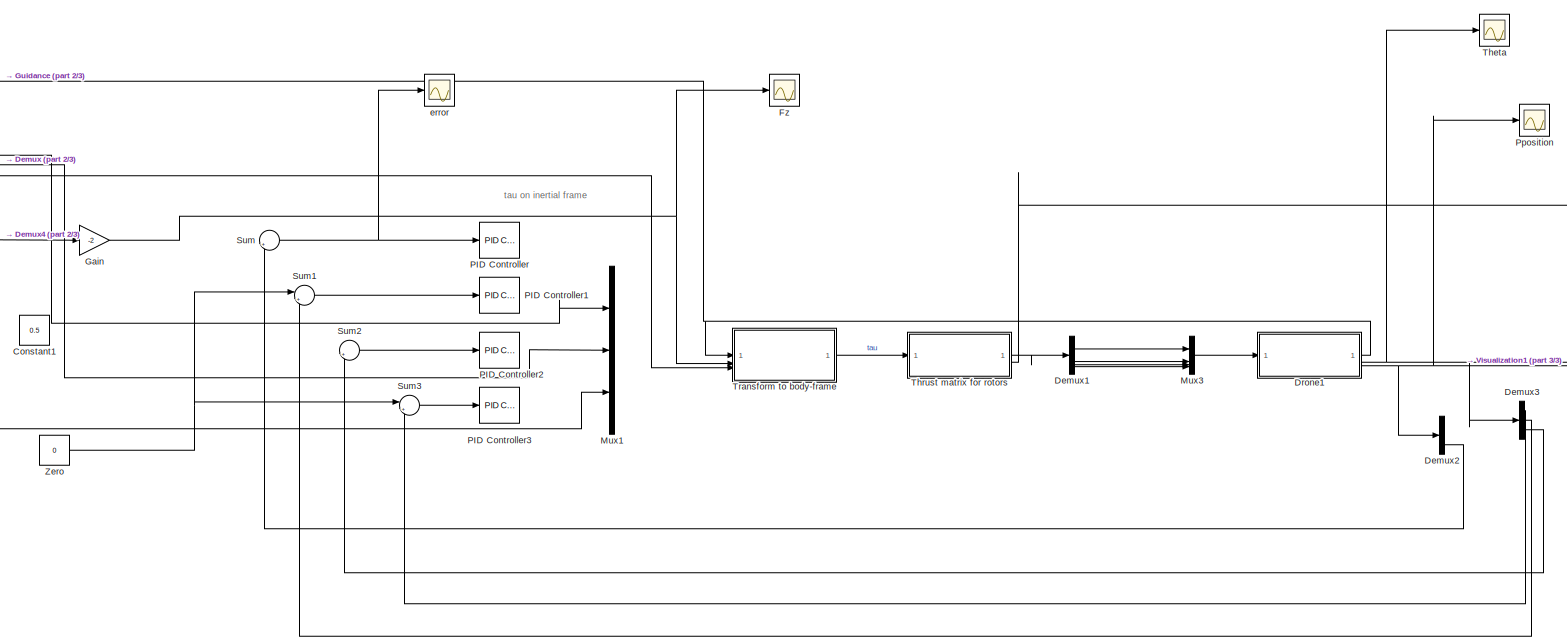
[diagram: root canvas - part 1/3, most of the canvas]
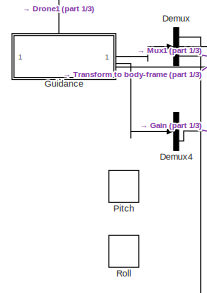
[diagram: root canvas - part 2/3, middle left region]
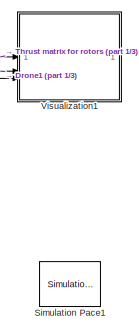
[diagram: root canvas - part 3/3, middle right region]
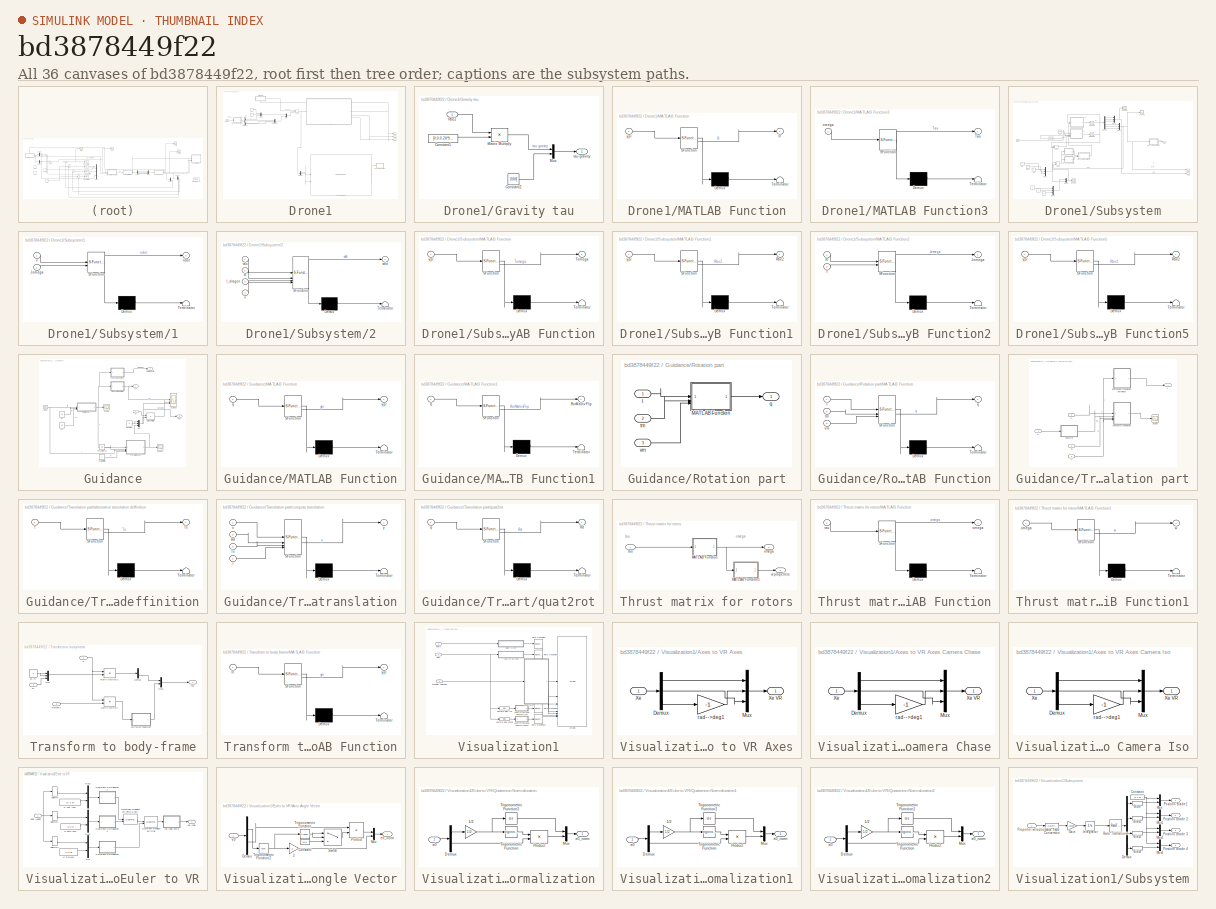
[diagram: thumbnail index - all 36 canvases of the model, root first then tree order]
MODEL slx_bd3878449f22
KIND model
CONFIG AbsTol = auto
CONFIG EnableMultiTasking = on
CONFIG FixedStep = 0.00000001
CONFIG MaxStep = auto
CONFIG MinStep = auto
CONFIG RelTol = 1e-3
CONFIG SampleTimeConstraint = Unconstrained
CONFIG SolverName = VariableStepAuto
CONFIG StartTime = 0
CONFIG StopTime = 1
BLOCK [Constant] Constant1
  Value = 0.5
BLOCK [Demux] Demux
  Outputs = 3
BLOCK [Demux] Demux1
BLOCK [Demux] Demux2
  Outputs = 3
BLOCK [Demux] Demux3
  Outputs = 3
BLOCK [Demux] Demux4
  Outputs = 3
BLOCK [SubSystem] Drone1
BLOCK [Reference] Drone1/6DOF (Quaternion)  REF=shared6dof/6DOF (Euler Angles)
  Commented = on
  SourceBlock = shared6dof/6DOF (Euler Angles)
  SourceType = 6DOF EoM (Body Axis)
BLOCK [Sum] Drone1/Add2
  IconShape = rectangular
BLOCK [Demux] Drone1/Demux
  Outputs = 2
BLOCK [Demux] Drone1/Demux1
BLOCK [Mux] Drone1/Forces
  DisplayOption = bar
  Inputs = 3
BLOCK [Constant] Drone1/Fx
  Value = 0
BLOCK [Constant] Drone1/Fy
  Value = 0
BLOCK [SubSystem] Drone1/Gravity tau
  PortSchema = {"entries":[{"content":{"sides":[{"content":{"connectorIds":[]},"type":"ConnectorPlacement.EquallySpacedRectSide","uuid":"34476b71-9b24-4b80-93b9-db525faab568"},{"content":{"connectorIds":["Out1"],"side":"RIGHT"},"type":"ConnectorPlacement.EquallySpacedRectSide","uuid":"f9e648e7-9cce-40ff-8639-1a2f2272512c"},{"content":{"connectorIds":["In1"],"side":"TOP"},"type":"ConnectorPlacement.EquallySpacedR...<+240ch>
BLOCK [Constant] Drone1/Gravity tau/Constant1
  Value = [0;0;0.28*9.81]
BLOCK [Constant] Drone1/Gravity tau/Constant2
  Value = [0;0;0]
BLOCK [Product] Drone1/Gravity tau/Matrix Multiply
  Multiplication = Matrix(*)
BLOCK [Mux] Drone1/Gravity tau/Mux
  DisplayOption = bar
  Inputs = 2
BLOCK [Inport] Drone1/Gravity tau/Rbe2
BLOCK [Outport] Drone1/Gravity tau/tau gravity
BLOCK [SubSystem] Drone1/MATLAB Function
  Commented = on
  ErrorFcn = Stateflow.Translate.translate
  LibrarySourceBlock = simulink/User-Defined\nFunctions/MATLAB Function
  PermitHierarchicalResolution = ExplicitOnly
  SFBlockType = MATLAB Function
  TreatAsAtomicUnit = on
BLOCK [Demux] Drone1/MATLAB Function/ Demux 
  Outputs = 1
BLOCK [S-Function] Drone1/MATLAB Function/ SFunction 
  EnableBusSupport = on
  FunctionName = sf_sfun
  PortCounts = [1 2]
  SFcnIsStateOwnerBlock = off
  SFunctionDeploymentMode = off
  Tag = Stateflow S-Function 9
BLOCK [Terminator] Drone1/MATLAB Function/ Terminator 
BLOCK [Outport] Drone1/MATLAB Function/R
BLOCK [Inport] Drone1/MATLAB Function/ypr
BLOCK [SubSystem] Drone1/MATLAB Function3
  ErrorFcn = Stateflow.Translate.translate
  LibrarySourceBlock = simulink/User-Defined\nFunctions/MATLAB Function
  PermitHierarchicalResolution = ExplicitOnly
  SFBlockType = MATLAB Function
  TreatAsAtomicUnit = on
BLOCK [Demux] Drone1/MATLAB Function3/ Demux 
  Outputs = 1
BLOCK [S-Function] Drone1/MATLAB Function3/ SFunction 
  EnableBusSupport = on
  FunctionName = sf_sfun
  PortCounts = [1 2]
  SFcnIsStateOwnerBlock = off
  SFunctionDeploymentMode = off
  Tag = Stateflow S-Function 14
BLOCK [Terminator] Drone1/MATLAB Function3/ Terminator 
BLOCK [Outport] Drone1/MATLAB Function3/Tau
BLOCK [Inport] Drone1/MATLAB Function3/omega
BLOCK [Outport] Drone1/NED
  Port = 3
BLOCK [Outport] Drone1/Rbe2
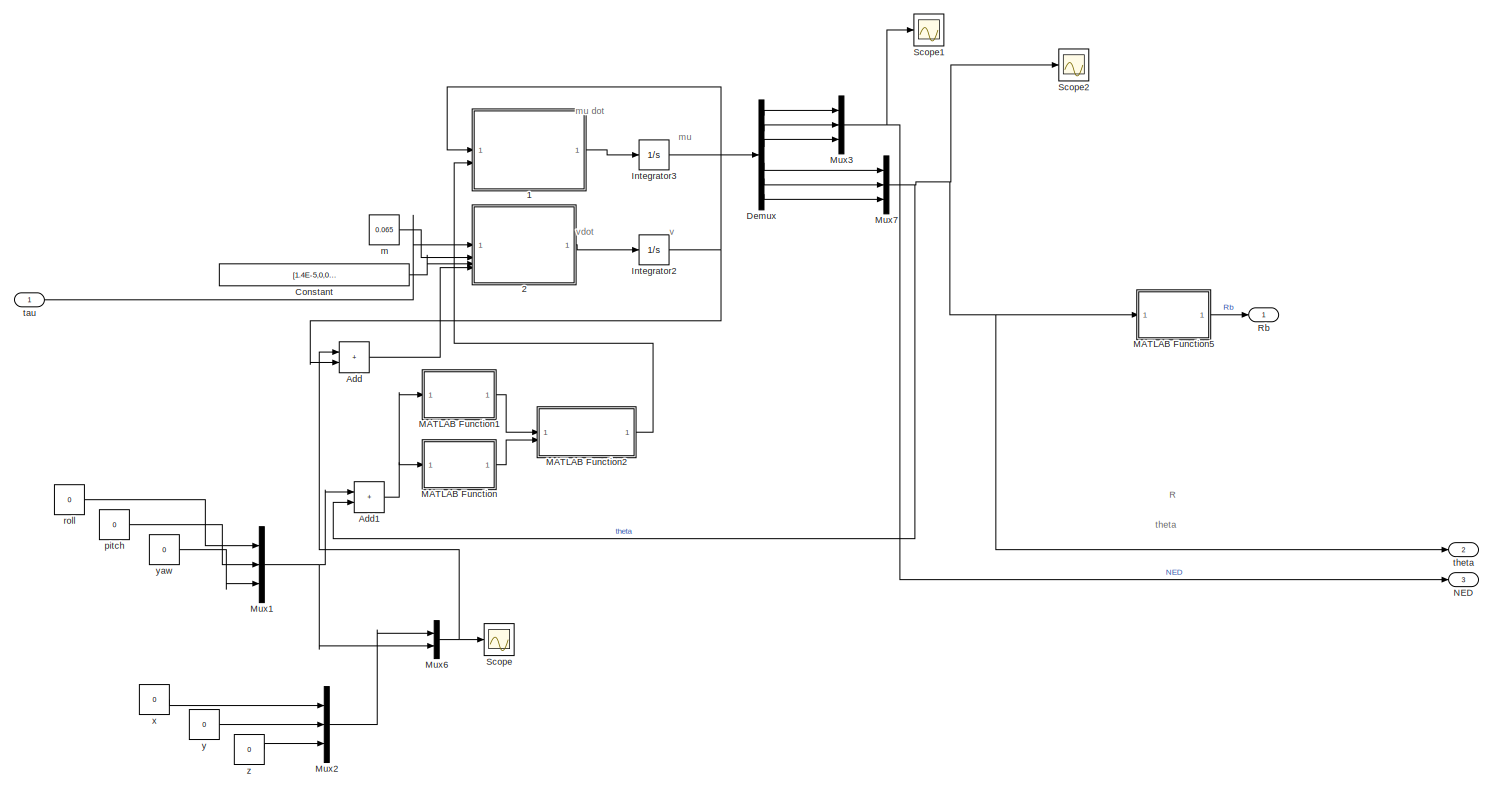
[diagram: Drone1/Subsystem - part 1/1, most of the canvas]
BLOCK [SubSystem] Drone1/Subsystem
BLOCK [SubSystem] Drone1/Subsystem/1
  ErrorFcn = Stateflow.Translate.translate
  LibrarySourceBlock = simulink/User-Defined\nFunctions/MATLAB Function
  PermitHierarchicalResolution = ExplicitOnly
  SFBlockType = MATLAB Function
  TreatAsAtomicUnit = on
BLOCK [Demux] Drone1/Subsystem/1/ Demux 
  Outputs = 1
BLOCK [S-Function] Drone1/Subsystem/1/ SFunction 
  EnableBusSupport = on
  FunctionName = sf_sfun
  PortCounts = [2 2]
  SFcnIsStateOwnerBlock = off
  SFunctionDeploymentMode = off
  Tag = Stateflow S-Function 2
BLOCK [Terminator] Drone1/Subsystem/1/ Terminator 
BLOCK [Inport] Drone1/Subsystem/1/Jomega
  Port = 2
BLOCK [Outport] Drone1/Subsystem/1/ndot
BLOCK [Inport] Drone1/Subsystem/1/v
BLOCK [SubSystem] Drone1/Subsystem/2
  ErrorFcn = Stateflow.Translate.translate
  PermitHierarchicalResolution = ExplicitOnly
  SFBlockType = MATLAB Function
  TreatAsAtomicUnit = on
BLOCK [Demux] Drone1/Subsystem/2/ Demux 
  Outputs = 1
BLOCK [S-Function] Drone1/Subsystem/2/ SFunction 
  EnableBusSupport = on
  FunctionName = sf_sfun
  PortCounts = [4 2]
  SFcnIsStateOwnerBlock = off
  SFunctionDeploymentMode = off
  Tag = Stateflow S-Function 7
BLOCK [Terminator] Drone1/Subsystem/2/ Terminator 
BLOCK [Inport] Drone1/Subsystem/2/I_dragon
  Port = 3
BLOCK [Inport] Drone1/Subsystem/2/m
  Port = 2
BLOCK [Inport] Drone1/Subsystem/2/tau
BLOCK [Inport] Drone1/Subsystem/2/v
  Port = 4
BLOCK [Outport] Drone1/Subsystem/2/vdot
  VectorParamsAs1DForOutWhenUnconnected = off
BLOCK [Sum] Drone1/Subsystem/Add
  IconShape = rectangular
BLOCK [Sum] Drone1/Subsystem/Add1
  IconShape = rectangular
BLOCK [Constant] Drone1/Subsystem/Constant
  Value = [1.4E-5,0,0;0,1.4E-5,0;0,0,2.17E-5]
BLOCK [Demux] Drone1/Subsystem/Demux
  Outputs = 6
BLOCK [Integrator] Drone1/Subsystem/Integrator2
BLOCK [Integrator] Drone1/Subsystem/Integrator3
BLOCK [SubSystem] Drone1/Subsystem/MATLAB Function
  ErrorFcn = Stateflow.Translate.translate
  LibrarySourceBlock = simulink/User-Defined\nFunctions/MATLAB Function
  PermitHierarchicalResolution = ExplicitOnly
  SFBlockType = MATLAB Function
  TreatAsAtomicUnit = on
BLOCK [Demux] Drone1/Subsystem/MATLAB Function/ Demux 
  Outputs = 1
BLOCK [S-Function] Drone1/Subsystem/MATLAB Function/ SFunction 
  EnableBusSupport = on
  FunctionName = sf_sfun
  PortCounts = [1 2]
  SFcnIsStateOwnerBlock = off
  SFunctionDeploymentMode = off
  Tag = Stateflow S-Function 11
BLOCK [Terminator] Drone1/Subsystem/MATLAB Function/ Terminator 
BLOCK [Outport] Drone1/Subsystem/MATLAB Function/Tomega
BLOCK [Inport] Drone1/Subsystem/MATLAB Function/ypr
BLOCK [SubSystem] Drone1/Subsystem/MATLAB Function1
  ErrorFcn = Stateflow.Translate.translate
  LibrarySourceBlock = simulink/User-Defined\nFunctions/MATLAB Function
  PermitHierarchicalResolution = ExplicitOnly
  SFBlockType = MATLAB Function
  TreatAsAtomicUnit = on
BLOCK [Demux] Drone1/Subsystem/MATLAB Function1/ Demux 
  Outputs = 1
BLOCK [S-Function] Drone1/Subsystem/MATLAB Function1/ SFunction 
  EnableBusSupport = on
  FunctionName = sf_sfun
  PortCounts = [1 2]
  SFcnIsStateOwnerBlock = off
  SFunctionDeploymentMode = off
  Tag = Stateflow S-Function 12
BLOCK [Terminator] Drone1/Subsystem/MATLAB Function1/ Terminator 
BLOCK [Outport] Drone1/Subsystem/MATLAB Function1/Rbe2
BLOCK [Inport] Drone1/Subsystem/MATLAB Function1/ypr
BLOCK [SubSystem] Drone1/Subsystem/MATLAB Function2
  ErrorFcn = Stateflow.Translate.translate
  LibrarySourceBlock = simulink/User-Defined\nFunctions/MATLAB Function
  PermitHierarchicalResolution = ExplicitOnly
  SFBlockType = MATLAB Function
  TreatAsAtomicUnit = on
BLOCK [Demux] Drone1/Subsystem/MATLAB Function2/ Demux 
  Outputs = 1
BLOCK [S-Function] Drone1/Subsystem/MATLAB Function2/ SFunction 
  EnableBusSupport = on
  FunctionName = sf_sfun
  PortCounts = [2 2]
  SFcnIsStateOwnerBlock = off
  SFunctionDeploymentMode = off
  Tag = Stateflow S-Function 13
BLOCK [Terminator] Drone1/Subsystem/MATLAB Function2/ Terminator 
BLOCK [Outport] Drone1/Subsystem/MATLAB Function2/Jomega
BLOCK [Inport] Drone1/Subsystem/MATLAB Function2/R
BLOCK [Inport] Drone1/Subsystem/MATLAB Function2/T
  Port = 2
BLOCK [SubSystem] Drone1/Subsystem/MATLAB Function5
  ErrorFcn = Stateflow.Translate.translate
  LibrarySourceBlock = simulink/User-Defined\nFunctions/MATLAB Function
  PermitHierarchicalResolution = ExplicitOnly
  SFBlockType = MATLAB Function
  TreatAsAtomicUnit = on
BLOCK [Demux] Drone1/Subsystem/MATLAB Function5/ Demux 
  Outputs = 1
BLOCK [S-Function] Drone1/Subsystem/MATLAB Function5/ SFunction 
  EnableBusSupport = on
  FunctionName = sf_sfun
  PortCounts = [1 2]
  SFcnIsStateOwnerBlock = off
  SFunctionDeploymentMode = off
  Tag = Stateflow S-Function 15
BLOCK [Terminator] Drone1/Subsystem/MATLAB Function5/ Terminator 
BLOCK [Outport] Drone1/Subsystem/MATLAB Function5/Rbe2
BLOCK [Inport] Drone1/Subsystem/MATLAB Function5/ypr
BLOCK [Mux] Drone1/Subsystem/Mux1
  DisplayOption = bar
  Inputs = 3
BLOCK [Mux] Drone1/Subsystem/Mux2
  DisplayOption = bar
  Inputs = 3
BLOCK [Mux] Drone1/Subsystem/Mux3
  DisplayOption = bar
  Inputs = 3
BLOCK [Mux] Drone1/Subsystem/Mux6
  DisplayOption = bar
  Inputs = 2
BLOCK [Mux] Drone1/Subsystem/Mux7
  DisplayOption = bar
  Inputs = 3
BLOCK [Outport] Drone1/Subsystem/NED
  Port = 3
BLOCK [Outport] Drone1/Subsystem/Rb
BLOCK [Scope] Drone1/Subsystem/Scope
  Floating = off
  NumInputPorts = 1
  ScopeSpecificationString = Simulink.scopes.TimeScopeBlockCfg('CurrentConfiguration', extmgr.ConfigurationSet(extmgr.Configuration('Core','General UI',true),extmgr.Configuration('Core','Source UI',true),extmgr.Configuration('Sources','WiredSimulink',true,'DataLoggingVariableName','ScopeData1'),extmgr.Configuration('Visuals','Time Domain',true),extmgr.Configuration('Tools','Plot Navigation',true),extmgr.Configuration('Tools',...<+40ch>
BLOCK [Scope] Drone1/Subsystem/Scope1
  Floating = off
  NumInputPorts = 1
  ScopeSpecificationString = Simulink.scopes.TimeScopeBlockCfg('CurrentConfiguration', extmgr.ConfigurationSet(extmgr.Configuration('Core','General UI',true),extmgr.Configuration('Core','Source UI',true),extmgr.Configuration('Sources','WiredSimulink',true,'DataLoggingVariableName','ScopeData2'),extmgr.Configuration('Visuals','Time Domain',true,'SerializedDisplays',{struct('MinYLimReal','-0.50783','MaxYLimReal','0.05643','YLab...<+1420ch>
BLOCK [Scope] Drone1/Subsystem/Scope2
  Floating = off
  NumInputPorts = 1
  ScopeSpecificationString = Simulink.scopes.TimeScopeBlockCfg('CurrentConfiguration', extmgr.ConfigurationSet(extmgr.Configuration('Core','General UI',true),extmgr.Configuration('Core','Source UI',true),extmgr.Configuration('Sources','WiredSimulink',true),extmgr.Configuration('Visuals','Time Domain',true,'SerializedDisplays',{struct('MinYLimReal','-1.00000','MaxYLimReal','1.00000','YLabelReal','','MinYLimMag','0.00000','MaxY...<+1402ch>
BLOCK [Constant] Drone1/Subsystem/m
  Value = 0.065
BLOCK [Constant] Drone1/Subsystem/pitch
  Value = 0
BLOCK [Constant] Drone1/Subsystem/roll
  Value = 0
BLOCK [Inport] Drone1/Subsystem/tau
BLOCK [Outport] Drone1/Subsystem/theta
  Port = 2
BLOCK [Constant] Drone1/Subsystem/x
  Value = 0
BLOCK [Constant] Drone1/Subsystem/y
  Value = 0
BLOCK [Constant] Drone1/Subsystem/yaw
  Value = 0
BLOCK [Constant] Drone1/Subsystem/z
  Value = 0
BLOCK [Outport] Drone1/Theta
  Port = 2
BLOCK [Mux] Drone1/moments
  DisplayOption = bar
  Inputs = 3
BLOCK [Inport] Drone1/omega
BLOCK [Mux] Drone1/tau
  DisplayOption = bar
  Inputs = 2
BLOCK [Scope] Fz
  Floating = off
  NumInputPorts = 1
  ScopeSpecificationString = Simulink.scopes.TimeScopeBlockCfg('CurrentConfiguration', extmgr.ConfigurationSet(extmgr.Configuration('Core','General UI',true),extmgr.Configuration('Core','Source UI',true),extmgr.Configuration('Sources','WiredSimulink',true,'DataLoggingVariableName','ScopeData3'),extmgr.Configuration('Visuals','Time Domain',true,'SerializedDisplays',{struct('MinYLimReal','-5.31799','MaxYLimReal','-2.13805','YLa...<+1456ch>
BLOCK [Gain] Gain
  Gain = -2
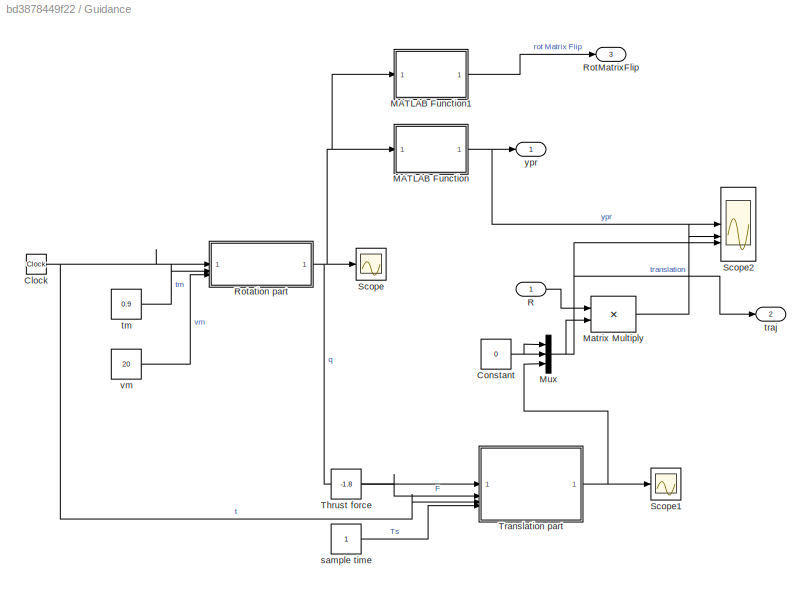
BLOCK [SubSystem] Guidance
  PortSchema = {"entries":[{"content":{"sides":[{"content":{"connectorIds":[]},"type":"ConnectorPlacement.EquallySpacedRectSide","uuid":"71e90d44-93d9-4948-9515-e584c9c45b4d"},{"content":{"connectorIds":["Out1","Out2","Out3"],"side":"RIGHT"},"type":"ConnectorPlacement.EquallySpacedRectSide","uuid":"b9ea6ff8-0025-4fb1-8de2-d026a39c77e0"},{"content":{"connectorIds":["In1"],"side":"TOP"},"type":"ConnectorPlacement....<+254ch>
BLOCK [Clock] Guidance/Clock
BLOCK [Constant] Guidance/Constant
  Value = 0
BLOCK [SubSystem] Guidance/MATLAB Function
  ErrorFcn = Stateflow.Translate.translate
  LibrarySourceBlock = simulink/User-Defined\nFunctions/MATLAB Function
  PermitHierarchicalResolution = ExplicitOnly
  SFBlockType = MATLAB Function
  TreatAsAtomicUnit = on
BLOCK [Demux] Guidance/MATLAB Function/ Demux 
  Outputs = 1
BLOCK [S-Function] Guidance/MATLAB Function/ SFunction 
  EnableBusSupport = on
  FunctionName = sf_sfun
  PortCounts = [1 2]
  SFcnIsStateOwnerBlock = off
  SFunctionDeploymentMode = off
  Tag = Stateflow S-Function 8
BLOCK [Terminator] Guidance/MATLAB Function/ Terminator 
BLOCK [Inport] Guidance/MATLAB Function/q
BLOCK [Outport] Guidance/MATLAB Function/ypr
BLOCK [SubSystem] Guidance/MATLAB Function1
  ErrorFcn = Stateflow.Translate.translate
  LibrarySourceBlock = simulink/User-Defined\nFunctions/MATLAB Function
  PermitHierarchicalResolution = ExplicitOnly
  SFBlockType = MATLAB Function
  TreatAsAtomicUnit = on
BLOCK [Demux] Guidance/MATLAB Function1/ Demux 
  Outputs = 1
BLOCK [S-Function] Guidance/MATLAB Function1/ SFunction 
  EnableBusSupport = on
  FunctionName = sf_sfun
  PortCounts = [1 2]
  SFcnIsStateOwnerBlock = off
  SFunctionDeploymentMode = off
  Tag = Stateflow S-Function 10
BLOCK [Terminator] Guidance/MATLAB Function1/ Terminator 
BLOCK [Outport] Guidance/MATLAB Function1/RotMatrixFlip
BLOCK [Inport] Guidance/MATLAB Function1/q
BLOCK [Product] Guidance/Matrix Multiply
  Multiplication = Matrix(*)
BLOCK [Mux] Guidance/Mux
  DisplayOption = bar
  Inputs = 3
BLOCK [Inport] Guidance/R
BLOCK [Outport] Guidance/RotMatrixFlip
  Port = 3
BLOCK [SubSystem] Guidance/Rotation part
BLOCK [SubSystem] Guidance/Rotation part/MATLAB Function
  ErrorFcn = Stateflow.Translate.translate
  LibrarySourceBlock = simulink/User-Defined\nFunctions/MATLAB Function
  PermitHierarchicalResolution = ExplicitOnly
  SFBlockType = MATLAB Function
  TreatAsAtomicUnit = on
BLOCK [Demux] Guidance/Rotation part/MATLAB Function/ Demux 
  Outputs = 1
BLOCK [S-Function] Guidance/Rotation part/MATLAB Function/ SFunction 
  EnableBusSupport = on
  FunctionName = sf_sfun
  PortCounts = [3 2]
  SFcnIsStateOwnerBlock = off
  SFunctionDeploymentMode = off
  Tag = Stateflow S-Function 3
BLOCK [Terminator] Guidance/Rotation part/MATLAB Function/ Terminator 
BLOCK [Outport] Guidance/Rotation part/MATLAB Function/q
BLOCK [Inport] Guidance/Rotation part/MATLAB Function/t
BLOCK [Inport] Guidance/Rotation part/MATLAB Function/tm
  Port = 2
BLOCK [Inport] Guidance/Rotation part/MATLAB Function/vm
  Port = 3
BLOCK [Outport] Guidance/Rotation part/q
BLOCK [Inport] Guidance/Rotation part/t
BLOCK [Inport] Guidance/Rotation part/tm
  Port = 2
BLOCK [Inport] Guidance/Rotation part/vm
  Port = 3
BLOCK [Scope] Guidance/Scope
  Floating = off
  NumInputPorts = 1
  ScopeSpecificationString = Simulink.scopes.TimeScopeBlockCfg('CurrentConfiguration', extmgr.ConfigurationSet(extmgr.Configuration('Core','General UI',true),extmgr.Configuration('Core','Source UI',true),extmgr.Configuration('Sources','WiredSimulink',true,'DataLoggingVariableName','ScopeData1'),extmgr.Configuration('Visuals','Time Domain',true,'SerializedDisplays',{struct('MinYLimReal','-1.24972','MaxYLimReal','1.24997','YLab...<+1461ch>
BLOCK [Scope] Guidance/Scope1
  Floating = off
  NumInputPorts = 1
  ScopeSpecificationString = Simulink.scopes.TimeScopeBlockCfg('CurrentConfiguration', extmgr.ConfigurationSet(extmgr.Configuration('Core','General UI',true),extmgr.Configuration('Core','Source UI',true),extmgr.Configuration('Sources','WiredSimulink',true,'DataLoggingVariableName','ScopeData1'),extmgr.Configuration('Visuals','Time Domain',true,'SerializedDisplays',{struct('MinYLimReal','-2.80858','MaxYLimReal','25.39671','YLa...<+1434ch>
BLOCK [Scope] Guidance/Scope2
  Floating = off
  NumInputPorts = 3
  ScopeSpecificationString = Simulink.scopes.TimeScopeBlockCfg('CurrentConfiguration', extmgr.ConfigurationSet(extmgr.Configuration('Core','General UI',true),extmgr.Configuration('Core','Source UI',true),extmgr.Configuration('Sources','WiredSimulink',true,'DataLoggingVariableName','ScopeData2'),extmgr.Configuration('Visuals','Time Domain',true,'SerializedDisplays',{struct('MinYLimReal','-27.39735','MaxYLimReal','28.1288','YLa...<+1759ch>
BLOCK [Constant] Guidance/Thrust force
  Value = -1.8
BLOCK [SubSystem] Guidance/Translation part
BLOCK [Scope] Guidance/Translation part/Scope
  Floating = off
  NumInputPorts = 1
  ScopeSpecificationString = Simulink.scopes.TimeScopeBlockCfg('CurrentConfiguration', extmgr.ConfigurationSet(extmgr.Configuration('Core','General UI',true),extmgr.Configuration('Core','Source UI',true),extmgr.Configuration('Sources','WiredSimulink',true,'DataLoggingVariableName','ScopeData2'),extmgr.Configuration('Visuals','Time Domain',true),extmgr.Configuration('Tools','Plot Navigation',true),extmgr.Configuration('Tools',...<+40ch>
BLOCK [Inport] Guidance/Translation part/Ts
  Port = 4
BLOCK [SubSystem] Guidance/Translation part/alternative translation deffinition
  ErrorFcn = Stateflow.Translate.translate
  LibrarySourceBlock = simulink/User-Defined\nFunctions/MATLAB Function
  PermitHierarchicalResolution = ExplicitOnly
  SFBlockType = MATLAB Function
  TreatAsAtomicUnit = on
BLOCK [Demux] Guidance/Translation part/alternative translation deffinition/ Demux 
  Outputs = 1
BLOCK [S-Function] Guidance/Translation part/alternative translation deffinition/ SFunction 
  EnableBusSupport = on
  FunctionName = sf_sfun
  PortCounts = [1 2]
  SFcnIsStateOwnerBlock = off
  SFunctionDeploymentMode = off
  Tag = Stateflow S-Function 6
BLOCK [Terminator] Guidance/Translation part/alternative translation deffinition/ Terminator 
BLOCK [Outport] Guidance/Translation part/alternative translation deffinition/Ts
BLOCK [Inport] Guidance/Translation part/alternative translation deffinition/t
BLOCK [SubSystem] Guidance/Translation part/compute translation
  Commented = on
  ErrorFcn = Stateflow.Translate.translate
  LibrarySourceBlock = simulink/User-Defined\nFunctions/MATLAB Function
  PermitHierarchicalResolution = ExplicitOnly
  SFBlockType = MATLAB Function
  TreatAsAtomicUnit = on
BLOCK [Demux] Guidance/Translation part/compute translation/ Demux 
  Outputs = 1
BLOCK [S-Function] Guidance/Translation part/compute translation/ SFunction 
  EnableBusSupport = on
  FunctionName = sf_sfun
  PortCounts = [4 2]
  SFcnIsStateOwnerBlock = off
  SFunctionDeploymentMode = off
  Tag = Stateflow S-Function 5
BLOCK [Terminator] Guidance/Translation part/compute translation/ Terminator 
BLOCK [Inport] Guidance/Translation part/compute translation/Rd
  Port = 2
BLOCK [Inport] Guidance/Translation part/compute translation/Ts
  Port = 3
BLOCK [Inport] Guidance/Translation part/compute translation/t
  Port = 4
BLOCK [Inport] Guidance/Translation part/compute translation/u
BLOCK [Outport] Guidance/Translation part/compute translation/y
BLOCK [Inport] Guidance/Translation part/q
BLOCK [SubSystem] Guidance/Translation part/quat2rot
  ErrorFcn = Stateflow.Translate.translate
  LibrarySourceBlock = simulink/User-Defined\nFunctions/MATLAB Function
  PermitHierarchicalResolution = ExplicitOnly
  SFBlockType = MATLAB Function
  TreatAsAtomicUnit = on
BLOCK [Demux] Guidance/Translation part/quat2rot/ Demux 
  Outputs = 1
BLOCK [S-Function] Guidance/Translation part/quat2rot/ SFunction 
  EnableBusSupport = on
  FunctionName = sf_sfun
  PortCounts = [1 2]
  SFcnIsStateOwnerBlock = off
  SFunctionDeploymentMode = off
  Tag = Stateflow S-Function 4
BLOCK [Terminator] Guidance/Translation part/quat2rot/ Terminator 
BLOCK [Outport] Guidance/Translation part/quat2rot/Rd
BLOCK [Inport] Guidance/Translation part/quat2rot/q
BLOCK [Inport] Guidance/Translation part/t
  Port = 3
BLOCK [Inport] Guidance/Translation part/u
  Port = 2
BLOCK [Outport] Guidance/Translation part/y
BLOCK [Constant] Guidance/sample time
BLOCK [Constant] Guidance/tm
  Value = 0.9
BLOCK [Outport] Guidance/traj
  Port = 2
BLOCK [Constant] Guidance/vm
  Value = 20
BLOCK [Outport] Guidance/ypr
BLOCK [Mux] Mux1
  DisplayOption = bar
  Inputs = 3
BLOCK [Mux] Mux3
  DisplayOption = bar
BLOCK [Reference] PID Controller  REF=slpidlib/PID Controller
  LibrarySourceBlock = simulink/Continuous/PID Controller
  SourceBlock = slpidlib/PID Controller
  SourceType = PID 1dof
BLOCK [Reference] PID Controller1  REF=slpidlib/PID Controller
  LibrarySourceBlock = simulink/Continuous/PID Controller
  SourceBlock = slpidlib/PID Controller
  SourceType = PID 1dof
BLOCK [Reference] PID Controller2  REF=slpidlib/PID Controller
  LibrarySourceBlock = simulink/Continuous/PID Controller
  SourceBlock = slpidlib/PID Controller
  SourceType = PID 1dof
BLOCK [Reference] PID Controller3  REF=slpidlib/PID Controller
  LibrarySourceBlock = simulink/Continuous/PID Controller
  SourceBlock = slpidlib/PID Controller
  SourceType = PID 1dof
BLOCK [DiscretePulseGenerator] Pitch
  Amplitude = -0.15
  Commented = on
  Period = 1
  PhaseDelay = 0.6
  PulseType = Time based
  PulseWidth = 5
BLOCK [Scope] Pposition
  Floating = off
  NumInputPorts = 1
  ScopeSpecificationString = Simulink.scopes.TimeScopeBlockCfg('CurrentConfiguration', extmgr.ConfigurationSet(extmgr.Configuration('Core','General UI',true),extmgr.Configuration('Core','Source UI',true),extmgr.Configuration('Sources','WiredSimulink',true,'DataLoggingVariableName','ScopeData2'),extmgr.Configuration('Visuals','Time Domain',true,'SerializedDisplays',{struct('MinYLimReal','-1.51892','MaxYLimReal','0.16877','YLab...<+1477ch>
BLOCK [DiscretePulseGenerator] Roll
  Amplitude = 0.1
  Commented = on
  Period = 10
  PhaseDelay = 4
  PulseType = Time based
  PulseWidth = 5
BLOCK [Reference] Simulation Pace1  REF=aerolibanimutils/Simulation Pace
  AttributesFormatString = %<SimulationPace> sec/sec
  SourceBlock = aerolibanimutils/Simulation Pace
  SourceType = Simulation Pace
BLOCK [Sum] Sum
  Inputs = |+-
BLOCK [Sum] Sum1
  Inputs = |+-
BLOCK [Sum] Sum2
  Inputs = |+-
BLOCK [Sum] Sum3
  Inputs = |+-
BLOCK [Scope] Theta
  Floating = off
  NumInputPorts = 1
  ScopeSpecificationString = Simulink.scopes.TimeScopeBlockCfg('CurrentConfiguration', extmgr.ConfigurationSet(extmgr.Configuration('Core','General UI',true),extmgr.Configuration('Core','Source UI',true),extmgr.Configuration('Sources','WiredSimulink',true,'DataLoggingVariableName','ScopeData1'),extmgr.Configuration('Visuals','Time Domain',true,'SerializedDisplays',{struct('MinYLimReal','-1.00000','MaxYLimReal','1.00000','YLab...<+1449ch>
BLOCK [SubSystem] Thrust matrix for rotors
BLOCK [SubSystem] Thrust matrix for rotors/MATLAB Function
  ErrorFcn = Stateflow.Translate.translate
  LibrarySourceBlock = simulink/User-Defined\nFunctions/MATLAB Function
  PermitHierarchicalResolution = ExplicitOnly
  SFBlockType = MATLAB Function
  TreatAsAtomicUnit = on
BLOCK [Demux] Thrust matrix for rotors/MATLAB Function/ Demux 
  Outputs = 1
BLOCK [S-Function] Thrust matrix for rotors/MATLAB Function/ SFunction 
  EnableBusSupport = on
  FunctionName = sf_sfun
  PortCounts = [1 2]
  SFcnIsStateOwnerBlock = off
  SFunctionDeploymentMode = off
  Tag = Stateflow S-Function 16
BLOCK [Terminator] Thrust matrix for rotors/MATLAB Function/ Terminator 
BLOCK [Outport] Thrust matrix for rotors/MATLAB Function/omega
BLOCK [Inport] Thrust matrix for rotors/MATLAB Function/tau
BLOCK [SubSystem] Thrust matrix for rotors/MATLAB Function1
  ErrorFcn = Stateflow.Translate.translate
  LibrarySourceBlock = simulink/User-Defined\nFunctions/MATLAB Function
  PermitHierarchicalResolution = ExplicitOnly
  SFBlockType = MATLAB Function
  TreatAsAtomicUnit = on
BLOCK [Demux] Thrust matrix for rotors/MATLAB Function1/ Demux 
  Outputs = 1
BLOCK [S-Function] Thrust matrix for rotors/MATLAB Function1/ SFunction 
  EnableBusSupport = on
  FunctionName = sf_sfun
  PortCounts = [1 2]
  SFcnIsStateOwnerBlock = off
  SFunctionDeploymentMode = off
  Tag = Stateflow S-Function 1
BLOCK [Terminator] Thrust matrix for rotors/MATLAB Function1/ Terminator 
BLOCK [Inport] Thrust matrix for rotors/MATLAB Function1/omega
BLOCK [Outport] Thrust matrix for rotors/MATLAB Function1/w
BLOCK [Outport] Thrust matrix for rotors/omega
BLOCK [Inport] Thrust matrix for rotors/tau
BLOCK [Outport] Thrust matrix for rotors/w propellers
  Port = 2
BLOCK [SubSystem] Transform to body-frame
BLOCK [Demux] Transform to body-frame/Demux
  Outputs = 3
BLOCK [Constant] Transform to body-frame/Fx, Fy
  Value = 0
BLOCK [Inport] Transform to body-frame/Fz
  Port = 2
BLOCK [SubSystem] Transform to body-frame/MATLAB Function
  ErrorFcn = Stateflow.Translate.translate
  LibrarySourceBlock = simulink/User-Defined\nFunctions/MATLAB Function
  PermitHierarchicalResolution = ExplicitOnly
  SFBlockType = MATLAB Function
  TreatAsAtomicUnit = on
BLOCK [Demux] Transform to body-frame/MATLAB Function/ Demux 
  Outputs = 1
BLOCK [S-Function] Transform to body-frame/MATLAB Function/ SFunction 
  EnableBusSupport = on
  FunctionName = sf_sfun
  PortCounts = [1 2]
  SFcnIsStateOwnerBlock = off
  SFunctionDeploymentMode = off
  Tag = Stateflow S-Function 17
BLOCK [Terminator] Transform to body-frame/MATLAB Function/ Terminator 
BLOCK [Inport] Transform to body-frame/MATLAB Function/R
BLOCK [Outport] Transform to body-frame/MATLAB Function/ypr
BLOCK [Product] Transform to body-frame/Matrix Multiply
  Multiplication = Matrix(*)
BLOCK [Product] Transform to body-frame/Matrix Multiply1
  Multiplication = Matrix(*)
BLOCK [Mux] Transform to body-frame/Mux
  DisplayOption = bar
  Inputs = 3
BLOCK [Mux] Transform to body-frame/Mux1
  DisplayOption = bar
  Inputs = 2
BLOCK [Inport] Transform to body-frame/R
BLOCK [Inport] Transform to body-frame/moments
  Port = 3
BLOCK [Outport] Transform to body-frame/tau
BLOCK [SubSystem] Visualization1
BLOCK [SubSystem] Visualization1/Axes to VR Axes
BLOCK [SubSystem] Visualization1/Axes to VR Axes Camera Chase
BLOCK [Demux] Visualization1/Axes to VR Axes Camera Chase/Demux
  DisplayOption = none
  Outputs = 3
BLOCK [Mux] Visualization1/Axes to VR Axes Camera Chase/Mux
  DisplayOption = bar
  Inputs = 3
BLOCK [Inport] Visualization1/Axes to VR Axes Camera Chase/Xe
BLOCK [Outport] Visualization1/Axes to VR Axes Camera Chase/Xe VR
  VectorParamsAs1DForOutWhenUnconnected = off
BLOCK [Gain] Visualization1/Axes to VR Axes Camera Chase/rad-->deg1
  Gain = -1
  NameLocation = top
  OutDataTypeStr = Inherit: Same as input
  ParamDataTypeStr = Inherit: Same as input
  SaturateOnIntegerOverflow = on
BLOCK [SubSystem] Visualization1/Axes to VR Axes Camera Iso
BLOCK [Demux] Visualization1/Axes to VR Axes Camera Iso/Demux
  DisplayOption = none
  Outputs = 3
BLOCK [Mux] Visualization1/Axes to VR Axes Camera Iso/Mux
  DisplayOption = bar
  Inputs = 3
BLOCK [Inport] Visualization1/Axes to VR Axes Camera Iso/Xe
BLOCK [Outport] Visualization1/Axes to VR Axes Camera Iso/Xe VR
  VectorParamsAs1DForOutWhenUnconnected = off
BLOCK [Gain] Visualization1/Axes to VR Axes Camera Iso/rad-->deg1
  Gain = -1
  NameLocation = top
  OutDataTypeStr = Inherit: Same as input
  ParamDataTypeStr = Inherit: Same as input
  SaturateOnIntegerOverflow = on
BLOCK [Demux] Visualization1/Axes to VR Axes/Demux
  DisplayOption = none
  Outputs = 3
BLOCK [Mux] Visualization1/Axes to VR Axes/Mux
  DisplayOption = bar
  Inputs = 3
BLOCK [Inport] Visualization1/Axes to VR Axes/Xe
BLOCK [Outport] Visualization1/Axes to VR Axes/Xe VR
  VectorParamsAs1DForOutWhenUnconnected = off
BLOCK [Gain] Visualization1/Axes to VR Axes/rad-->deg1
  Gain = -1
  NameLocation = top
  OutDataTypeStr = Inherit: Same as input
  ParamDataTypeStr = Inherit: Same as input
  SaturateOnIntegerOverflow = on
BLOCK [Bias] Visualization1/Camera bias Chase
  Bias = [-4 0 -.9558]'
  SaturateOnIntegerOverflow = off
BLOCK [Bias] Visualization1/Camera bias Iso
  Bias = [0.9009 .99 -.6247]'
  SaturateOnIntegerOverflow = off
BLOCK [SubSystem] Visualization1/Euler to VR
BLOCK [Outport] Visualization1/Euler to VR/Axis Angle
  VectorParamsAs1DForOutWhenUnconnected = off
BLOCK [SubSystem] Visualization1/Euler to VR/Axis Angle Vector
BLOCK [Gain] Visualization1/Euler to VR/Axis Angle Vector/2
  Gain = 2
  OutDataTypeStr = Inherit: Same as input
  ParamDataTypeStr = Inherit: Same as input
  SaturateOnIntegerOverflow = on
BLOCK [Constant] Visualization1/Euler to VR/Axis Angle Vector/Constant
  Value = 1e-6
BLOCK [Demux] Visualization1/Euler to VR/Axis Angle Vector/Demux
  DisplayOption = none
  Outputs = [1 3 ]
BLOCK [Mux] Visualization1/Euler to VR/Axis Angle Vector/Mux
  DisplayOption = bar
  Inputs = 2
BLOCK [Product] Visualization1/Euler to VR/Axis Angle Vector/Product
  InputSameDT = on
  Inputs = */
  OutDataTypeStr = Inherit: Same as first input
  SaturateOnIntegerOverflow = on
BLOCK [Switch] Visualization1/Euler to VR/Axis Angle Vector/Switch
  Criteria = u2 ~= 0
  InputSameDT = off
  SaturateOnIntegerOverflow = off
BLOCK [Trigonometry] Visualization1/Euler to VR/Axis Angle Vector/Trigonometric Function
BLOCK [Trigonometry] Visualization1/Euler to VR/Axis Angle Vector/Trigonometric Function2
  Operator = acos
BLOCK [Inport] Visualization1/Euler to VR/Axis Angle Vector/e0
BLOCK [Outport] Visualization1/Euler to VR/Axis Angle Vector/e0_norm
  VectorParamsAs1DForOutWhenUnconnected = off
BLOCK [Inport] Visualization1/Euler to VR/Euler Angles
BLOCK [Mux] Visualization1/Euler to VR/Mux
  DisplayOption = bar
  Inputs = 2
BLOCK [Mux] Visualization1/Euler to VR/Mux1
  DisplayOption = bar
  Inputs = 2
BLOCK [Mux] Visualization1/Euler to VR/Mux2
  DisplayOption = bar
  Inputs = 2
BLOCK [Reference] Visualization1/Euler to VR/Quaternion Multiplication (Pitch & Yaw)  REF=aerolibutil/Quaternion
Multiplication
  SourceBlock = aerolibutil/Quaternion\nMultiplication
  SourceType = Quaternion Multiplication
BLOCK [Reference] Visualization1/Euler to VR/Quaternion Multiplication (Roll)  REF=aerolibutil/Quaternion
Multiplication
  SourceBlock = aerolibutil/Quaternion\nMultiplication
  SourceType = Quaternion Multiplication
BLOCK [SubSystem] Visualization1/Euler to VR/Quaternion Normalization
BLOCK [Gain] Visualization1/Euler to VR/Quaternion Normalization/1//2
  Gain = 1/2
  OutDataTypeStr = Inherit: Same as input
  ParamDataTypeStr = Inherit: Same as input
  SaturateOnIntegerOverflow = on
BLOCK [Demux] Visualization1/Euler to VR/Quaternion Normalization/Demux
  DisplayOption = none
  Outputs = [1 3]
BLOCK [Mux] Visualization1/Euler to VR/Quaternion Normalization/Mux
  DisplayOption = bar
  Inputs = 2
BLOCK [Product] Visualization1/Euler to VR/Quaternion Normalization/Product
  InputSameDT = on
  OutDataTypeStr = Inherit: Same as first input
  SaturateOnIntegerOverflow = on
BLOCK [Trigonometry] Visualization1/Euler to VR/Quaternion Normalization/Trigonometric Function
BLOCK [Trigonometry] Visualization1/Euler to VR/Quaternion Normalization/Trigonometric Function1
  Operator = cos
BLOCK [Inport] Visualization1/Euler to VR/Quaternion Normalization/e0
BLOCK [Outport] Visualization1/Euler to VR/Quaternion Normalization/e0_norm
  VectorParamsAs1DForOutWhenUnconnected = off
BLOCK [SubSystem] Visualization1/Euler to VR/Quaternion Normalization1
BLOCK [Gain] Visualization1/Euler to VR/Quaternion Normalization1/1//2
  Gain = 1/2
  OutDataTypeStr = Inherit: Same as input
  ParamDataTypeStr = Inherit: Same as input
  SaturateOnIntegerOverflow = on
BLOCK [Demux] Visualization1/Euler to VR/Quaternion Normalization1/Demux
  DisplayOption = none
  Outputs = [1 3]
BLOCK [Mux] Visualization1/Euler to VR/Quaternion Normalization1/Mux
  DisplayOption = bar
  Inputs = 2
BLOCK [Product] Visualization1/Euler to VR/Quaternion Normalization1/Product
  InputSameDT = on
  OutDataTypeStr = Inherit: Same as first input
  SaturateOnIntegerOverflow = on
BLOCK [Trigonometry] Visualization1/Euler to VR/Quaternion Normalization1/Trigonometric Function
BLOCK [Trigonometry] Visualization1/Euler to VR/Quaternion Normalization1/Trigonometric Function1
  Operator = cos
BLOCK [Inport] Visualization1/Euler to VR/Quaternion Normalization1/e0
BLOCK [Outport] Visualization1/Euler to VR/Quaternion Normalization1/e0_norm
  VectorParamsAs1DForOutWhenUnconnected = off
BLOCK [SubSystem] Visualization1/Euler to VR/Quaternion Normalization2
BLOCK [Gain] Visualization1/Euler to VR/Quaternion Normalization2/1//2
  Gain = 1/2
  OutDataTypeStr = Inherit: Same as input
  ParamDataTypeStr = Inherit: Same as input
  SaturateOnIntegerOverflow = on
BLOCK [Demux] Visualization1/Euler to VR/Quaternion Normalization2/Demux
  DisplayOption = none
  Outputs = [1 3]
BLOCK [Mux] Visualization1/Euler to VR/Quaternion Normalization2/Mux
  DisplayOption = bar
  Inputs = 2
BLOCK [Product] Visualization1/Euler to VR/Quaternion Normalization2/Product
  InputSameDT = on
  OutDataTypeStr = Inherit: Same as first input
  SaturateOnIntegerOverflow = on
BLOCK [Trigonometry] Visualization1/Euler to VR/Quaternion Normalization2/Trigonometric Function
BLOCK [Trigonometry] Visualization1/Euler to VR/Quaternion Normalization2/Trigonometric Function1
  Operator = cos
BLOCK [Inport] Visualization1/Euler to VR/Quaternion Normalization2/e0
BLOCK [Outport] Visualization1/Euler to VR/Quaternion Normalization2/e0_norm
  VectorParamsAs1DForOutWhenUnconnected = off
BLOCK [Selector] Visualization1/Euler to VR/Selector
  IndexOptions = Index vector (dialog)
  Indices = [3]
  InputPortWidth = 3
  OutputSizes = 1
BLOCK [Selector] Visualization1/Euler to VR/Selector1
  IndexOptions = Index vector (dialog)
  Indices = [2]
  InputPortWidth = 3
  OutputSizes = 1
BLOCK [Selector] Visualization1/Euler to VR/Selector2
  IndexOptions = Index vector (dialog)
  Indices = [1]
  InputPortWidth = 3
  OutputSizes = 1
BLOCK [Constant] Visualization1/Euler to VR/Vr Pitch Axes
  NameLocation = top
  Value = [0 0 1]
BLOCK [Constant] Visualization1/Euler to VR/Vr Roll Axes
  NameLocation = top
  Value = [1 0 0]
BLOCK [Constant] Visualization1/Euler to VR/Vr Yaw Axes
  Value = [0 -1 0]
BLOCK [Inport] Visualization1/NED
  Port = 2
BLOCK [Inport] Visualization1/Propeller velocities
BLOCK [RateTransition] Visualization1/Rate Transition
BLOCK [RateTransition] Visualization1/Rate Transition1
BLOCK [RateTransition] Visualization1/Rate Transition2
BLOCK [RateTransition] Visualization1/Rate Transition3
BLOCK [SubSystem] Visualization1/Subsystem
BLOCK [Bias] Visualization1/Subsystem/Bias
  Bias = .1
  SaturateOnIntegerOverflow = off
BLOCK [Bias] Visualization1/Subsystem/Bias1
  Bias = -.3
  SaturateOnIntegerOverflow = off
BLOCK [Bias] Visualization1/Subsystem/Bias2
  Bias = .5
  SaturateOnIntegerOverflow = off
BLOCK [Bias] Visualization1/Subsystem/Bias3
  Bias = .7
  SaturateOnIntegerOverflow = off
BLOCK [Constant] Visualization1/Subsystem/Constant
  Value = [0 1 0]
BLOCK [DataTypeConversion] Visualization1/Subsystem/Data Type Conversion
  OutDataTypeStr = double
  RndMeth = Floor
  SaturateOnIntegerOverflow = off
BLOCK [Demux] Visualization1/Subsystem/Demux
BLOCK [Gain] Visualization1/Subsystem/Gain
  Gain = 1.38408
BLOCK [Integrator] Visualization1/Subsystem/Integrator
  InitialCondition = [.1 ; .2 ;-.3 ;-.4]
  WrapState = on
  WrappedStateLowerValue = -2*pi
  WrappedStateUpperValue = 2*pi
BLOCK [Mux] Visualization1/Subsystem/Mux
  DisplayOption = bar
  Inputs = 2
BLOCK [Mux] Visualization1/Subsystem/Mux1
  DisplayOption = bar
  Inputs = 2
BLOCK [Mux] Visualization1/Subsystem/Mux2
  DisplayOption = bar
  Inputs = 2
BLOCK [Mux] Visualization1/Subsystem/Mux3
  DisplayOption = bar
  Inputs = 2
BLOCK [Outport] Visualization1/Subsystem/Position Blade 2
  Port = 2
  VectorParamsAs1DForOutWhenUnconnected = off
BLOCK [Outport] Visualization1/Subsystem/Position Blade 3
  Port = 3
  VectorParamsAs1DForOutWhenUnconnected = off
BLOCK [Outport] Visualization1/Subsystem/Position Blade 4
  Port = 4
  VectorParamsAs1DForOutWhenUnconnected = off
BLOCK [Outport] Visualization1/Subsystem/Position Blade1
  VectorParamsAs1DForOutWhenUnconnected = off
BLOCK [Inport] Visualization1/Subsystem/Propeller velocities
BLOCK [RateTransition] Visualization1/Subsystem/Rate Transition2
BLOCK [Inport] Visualization1/Theta
  Port = 3
BLOCK [Reference] Visualization1/VR Sink  REF=vrlib/VR Sink
  InstantiateOnLoad = on
  SourceBlock = vrlib/VR Sink
  SourceType = Virtual Reality Sink
BLOCK [Constant] Zero
  OutDataTypeStr = Inherit: Inherit via back propagation
  Value = 0
BLOCK [Scope] error
  Floating = off
  NumInputPorts = 1
  ScopeSpecificationString = Simulink.scopes.TimeScopeBlockCfg('CurrentConfiguration', extmgr.ConfigurationSet(extmgr.Configuration('Core','General UI',true),extmgr.Configuration('Core','Source UI',true),extmgr.Configuration('Sources','WiredSimulink',true,'DataLoggingVariableName','ScopeData4'),extmgr.Configuration('Visuals','Time Domain',true,'SerializedDisplays',{struct('MinYLimReal','-3.40456','MaxYLimReal','4.08757','YLab...<+1458ch>
ANNOTATION (root): tau on inertial frame
ANNOTATION Drone1: Fz
ANNOTATION Drone1: mx
ANNOTATION Drone1: my
ANNOTATION Drone1: mz
ANNOTATION Drone1: omega
ANNOTATION Drone1: tau
ANNOTATION Drone1/Subsystem: R
ANNOTATION Drone1/Subsystem: mu
ANNOTATION Drone1/Subsystem: mu dot
ANNOTATION Drone1/Subsystem: theta
ANNOTATION Drone1/Subsystem: v
ANNOTATION Drone1/Subsystem: vdot
ANNOTATION Thrust matrix for rotors: omega
ANNOTATION Thrust matrix for rotors: tau
LINE Demux1:1 -> Mux3:1
LINE Demux1:2 -> Mux3:2
LINE Demux1:3 -> Mux3:3
LINE Demux1:4 -> Mux3:4
LINE Demux2:3 -> Sum:2
LINE Demux3:1 -> Sum3:2
LINE Demux3:2 -> Sum1:2
LINE Demux3:3 -> Sum2:2
LINE Demux4:3 -> Gain:1
LINE Demux:1 -> Mux1:3
LINE Demux:2 -> Mux1:1
LINE Demux:3 -> Mux1:2
LINE Drone1/6DOF (Quaternion):3 -> Drone1/MATLAB Function:1
NET Drone1/Add2:1 -> Drone1/Demux:1, Drone1/Subsystem:1
LINE Drone1/Demux1:1 -> Drone1/Forces:3
LINE Drone1/Demux1:2 -> Drone1/moments:1
LINE Drone1/Demux1:3 -> Drone1/moments:2
LINE Drone1/Demux1:4 -> Drone1/moments:3
LINE Drone1/Demux:1 -> Drone1/6DOF (Quaternion):1
LINE Drone1/Demux:2 -> Drone1/6DOF (Quaternion):2
LINE Drone1/Forces:1 -> Drone1/tau:1
LINE Drone1/Fx:1 -> Drone1/Forces:1
LINE Drone1/Fy:1 -> Drone1/Forces:2
LINE Drone1/Gravity tau/Constant1:1 -> Drone1/Gravity tau/Matrix Multiply:2
LINE Drone1/Gravity tau/Constant2:1 -> Drone1/Gravity tau/Mux:2
LINE Drone1/Gravity tau/Matrix Multiply:1 -> Drone1/Gravity tau/Mux:1
LINE Drone1/Gravity tau/Mux:1 -> Drone1/Gravity tau/tau gravity:1
LINE Drone1/Gravity tau/Rbe2:1 -> Drone1/Gravity tau/Matrix Multiply:1
LINE Drone1/Gravity tau:1 -> Drone1/Add2:1
LINE Drone1/MATLAB Function3:1 -> Drone1/Demux1:1
LINE Drone1/Subsystem/1:1 -> Drone1/Subsystem/Integrator3:1
LINE Drone1/Subsystem/2:1 -> Drone1/Subsystem/Integrator2:1
NET Drone1/Subsystem/Add1:1 -> Drone1/Subsystem/MATLAB Function1:1, Drone1/Subsystem/MATLAB Function:1
LINE Drone1/Subsystem/Add:1 -> Drone1/Subsystem/2:4
LINE Drone1/Subsystem/Constant:1 -> Drone1/Subsystem/2:3
LINE Drone1/Subsystem/Demux:1 -> Drone1/Subsystem/Mux3:1
LINE Drone1/Subsystem/Demux:2 -> Drone1/Subsystem/Mux3:2
LINE Drone1/Subsystem/Demux:3 -> Drone1/Subsystem/Mux3:3
LINE Drone1/Subsystem/Demux:4 -> Drone1/Subsystem/Mux7:1
LINE Drone1/Subsystem/Demux:5 -> Drone1/Subsystem/Mux7:2
LINE Drone1/Subsystem/Demux:6 -> Drone1/Subsystem/Mux7:3
NET Drone1/Subsystem/Integrator2:1 -> Drone1/Subsystem/1:1, Drone1/Subsystem/Add:2
LINE Drone1/Subsystem/Integrator3:1 -> Drone1/Subsystem/Demux:1
LINE Drone1/Subsystem/MATLAB Function1:1 -> Drone1/Subsystem/MATLAB Function2:1
LINE Drone1/Subsystem/MATLAB Function2:1 -> Drone1/Subsystem/1:2
LINE Drone1/Subsystem/MATLAB Function5:1 -> Drone1/Subsystem/Rb:1
LINE Drone1/Subsystem/MATLAB Function:1 -> Drone1/Subsystem/MATLAB Function2:2
NET Drone1/Subsystem/Mux1:1 -> Drone1/Subsystem/Add1:1, Drone1/Subsystem/Mux6:2
LINE Drone1/Subsystem/Mux2:1 -> Drone1/Subsystem/Mux6:1
NET Drone1/Subsystem/Mux3:1 -> Drone1/Subsystem/NED:1, Drone1/Subsystem/Scope1:1
NET Drone1/Subsystem/Mux6:1 -> Drone1/Subsystem/Add:1, Drone1/Subsystem/Scope:1
NET Drone1/Subsystem/Mux7:1 -> Drone1/Subsystem/Add1:2, Drone1/Subsystem/MATLAB Function5:1, Drone1/Subsystem/Scope2:1, Drone1/Subsystem/theta:1
LINE Drone1/Subsystem/m:1 -> Drone1/Subsystem/2:2
LINE Drone1/Subsystem/pitch:1 -> Drone1/Subsystem/Mux1:2
LINE Drone1/Subsystem/roll:1 -> Drone1/Subsystem/Mux1:1
LINE Drone1/Subsystem/tau:1 -> Drone1/Subsystem/2:1
LINE Drone1/Subsystem/x:1 -> Drone1/Subsystem/Mux2:1
LINE Drone1/Subsystem/y:1 -> Drone1/Subsystem/Mux2:2
LINE Drone1/Subsystem/yaw:1 -> Drone1/Subsystem/Mux1:3
LINE Drone1/Subsystem/z:1 -> Drone1/Subsystem/Mux2:3
NET Drone1/Subsystem:1 -> Drone1/Gravity tau:1, Drone1/Rbe2:1
LINE Drone1/Subsystem:2 -> Drone1/Theta:1
LINE Drone1/Subsystem:3 -> Drone1/NED:1
LINE Drone1/moments:1 -> Drone1/tau:2
LINE Drone1/omega:1 -> Drone1/MATLAB Function3:1
LINE Drone1/tau:1 -> Drone1/Add2:2
NET Drone1:1 -> Guidance:1, Transform to body-frame:1
NET Drone1:2 -> Demux3:1, Theta:1, Visualization1:3
NET Drone1:3 -> Demux2:1, Pposition:1, Visualization1:2
NET Gain:1 -> Fz:1, Transform to body-frame:2
NET Guidance/Clock:1 -> Guidance/Rotation part:1, Guidance/Translation part:3
NET Guidance/Constant:1 -> Guidance/Mux:1, Guidance/Mux:2
LINE Guidance/MATLAB Function1:1 -> Guidance/RotMatrixFlip:1
NET Guidance/MATLAB Function:1 -> Guidance/Scope2:1, Guidance/ypr:1
LINE Guidance/Matrix Multiply:1 -> Guidance/Scope2:2
NET Guidance/Mux:1 -> Guidance/Matrix Multiply:2, Guidance/Scope2:3, Guidance/traj:1
LINE Guidance/R:1 -> Guidance/Matrix Multiply:1
LINE Guidance/Rotation part/MATLAB Function:1 -> Guidance/Rotation part/q:1
LINE Guidance/Rotation part/t:1 -> Guidance/Rotation part/MATLAB Function:1
LINE Guidance/Rotation part/tm:1 -> Guidance/Rotation part/MATLAB Function:2
LINE Guidance/Rotation part/vm:1 -> Guidance/Rotation part/MATLAB Function:3
NET Guidance/Rotation part:1 -> Guidance/MATLAB Function1:1, Guidance/MATLAB Function:1, Guidance/Scope:1, Guidance/Translation part:1
LINE Guidance/Thrust force:1 -> Guidance/Translation part:2
LINE Guidance/Translation part/Ts:1 -> Guidance/Translation part/compute translation:3
LINE Guidance/Translation part/alternative translation deffinition:1 -> Guidance/Translation part/y:1
LINE Guidance/Translation part/compute translation:1 -> Guidance/Translation part/Scope:1
LINE Guidance/Translation part/q:1 -> Guidance/Translation part/quat2rot:1
LINE Guidance/Translation part/quat2rot:1 -> Guidance/Translation part/compute translation:2
NET Guidance/Translation part/t:1 -> Guidance/Translation part/alternative translation deffinition:1, Guidance/Translation part/compute translation:4
LINE Guidance/Translation part/u:1 -> Guidance/Translation part/compute translation:1
NET Guidance/Translation part:1 -> Guidance/Mux:3, Guidance/Scope1:1
LINE Guidance/sample time:1 -> Guidance/Translation part:4
LINE Guidance/tm:1 -> Guidance/Rotation part:2
LINE Guidance/vm:1 -> Guidance/Rotation part:3
LINE Guidance:1 -> Demux:1
LINE Guidance:2 -> Demux4:1
LINE Guidance:3 -> Transform to body-frame:3
LINE Mux3:1 -> Drone1:1
LINE Sum1:1 -> PID Controller1:1
LINE Sum2:1 -> PID Controller2:1
LINE Sum3:1 -> PID Controller3:1
NET Sum:1 -> PID Controller:1, error:1
LINE Thrust matrix for rotors/MATLAB Function1:1 -> Thrust matrix for rotors/w propellers:1
NET Thrust matrix for rotors/MATLAB Function:1 -> Thrust matrix for rotors/MATLAB Function1:1, Thrust matrix for rotors/omega:1
LINE Thrust matrix for rotors/tau:1 -> Thrust matrix for rotors/MATLAB Function:1
LINE Thrust matrix for rotors:1 -> Demux1:1
LINE Thrust matrix for rotors:2 -> Visualization1:1
LINE Transform to body-frame/Demux:3 -> Transform to body-frame/Mux1:1
NET Transform to body-frame/Fx, Fy:1 -> Transform to body-frame/Mux:1, Transform to body-frame/Mux:2
LINE Transform to body-frame/Fz:1 -> Transform to body-frame/Mux:3
LINE Transform to body-frame/MATLAB Function:1 -> Transform to body-frame/Mux1:2
LINE Transform to body-frame/Matrix Multiply1:1 -> Transform to body-frame/Demux:1
LINE Transform to body-frame/Matrix Multiply:1 -> Transform to body-frame/MATLAB Function:1
LINE Transform to body-frame/Mux1:1 -> Transform to body-frame/tau:1
LINE Transform to body-frame/Mux:1 -> Transform to body-frame/Matrix Multiply1:2
NET Transform to body-frame/R:1 -> Transform to body-frame/Matrix Multiply1:1, Transform to body-frame/Matrix Multiply:1
LINE Transform to body-frame/moments:1 -> Transform to body-frame/Matrix Multiply:2
LINE Transform to body-frame:1 -> Thrust matrix for rotors:1
LINE Visualization1/Axes to VR Axes Camera Chase/Demux:1 -> Visualization1/Axes to VR Axes Camera Chase/Mux:1
LINE Visualization1/Axes to VR Axes Camera Chase/Demux:2 -> Visualization1/Axes to VR Axes Camera Chase/Mux:3
LINE Visualization1/Axes to VR Axes Camera Chase/Demux:3 -> Visualization1/Axes to VR Axes Camera Chase/rad-->deg1:1
LINE Visualization1/Axes to VR Axes Camera Chase/Mux:1 -> Visualization1/Axes to VR Axes Camera Chase/Xe VR:1
LINE Visualization1/Axes to VR Axes Camera Chase/Xe:1 -> Visualization1/Axes to VR Axes Camera Chase/Demux:1
LINE Visualization1/Axes to VR Axes Camera Chase/rad-->deg1:1 -> Visualization1/Axes to VR Axes Camera Chase/Mux:2
LINE Visualization1/Axes to VR Axes Camera Chase:1 -> Visualization1/Rate Transition3:1
LINE Visualization1/Axes to VR Axes Camera Iso/Demux:1 -> Visualization1/Axes to VR Axes Camera Iso/Mux:1
LINE Visualization1/Axes to VR Axes Camera Iso/Demux:2 -> Visualization1/Axes to VR Axes Camera Iso/Mux:3
LINE Visualization1/Axes to VR Axes Camera Iso/Demux:3 -> Visualization1/Axes to VR Axes Camera Iso/rad-->deg1:1
LINE Visualization1/Axes to VR Axes Camera Iso/Mux:1 -> Visualization1/Axes to VR Axes Camera Iso/Xe VR:1
LINE Visualization1/Axes to VR Axes Camera Iso/Xe:1 -> Visualization1/Axes to VR Axes Camera Iso/Demux:1
LINE Visualization1/Axes to VR Axes Camera Iso/rad-->deg1:1 -> Visualization1/Axes to VR Axes Camera Iso/Mux:2
LINE Visualization1/Axes to VR Axes Camera Iso:1 -> Visualization1/Rate Transition2:1
LINE Visualization1/Axes to VR Axes/Demux:1 -> Visualization1/Axes to VR Axes/Mux:1
LINE Visualization1/Axes to VR Axes/Demux:2 -> Visualization1/Axes to VR Axes/Mux:3
LINE Visualization1/Axes to VR Axes/Demux:3 -> Visualization1/Axes to VR Axes/rad-->deg1:1
LINE Visualization1/Axes to VR Axes/Mux:1 -> Visualization1/Axes to VR Axes/Xe VR:1
LINE Visualization1/Axes to VR Axes/Xe:1 -> Visualization1/Axes to VR Axes/Demux:1
LINE Visualization1/Axes to VR Axes/rad-->deg1:1 -> Visualization1/Axes to VR Axes/Mux:2
LINE Visualization1/Axes to VR Axes:1 -> Visualization1/Rate Transition1:1
LINE Visualization1/Camera bias Chase:1 -> Visualization1/Axes to VR Axes Camera Chase:1
LINE Visualization1/Camera bias Iso:1 -> Visualization1/Axes to VR Axes Camera Iso:1
LINE Visualization1/Euler to VR/Axis Angle Vector/2:1 -> Visualization1/Euler to VR/Axis Angle Vector/Mux:2
LINE Visualization1/Euler to VR/Axis Angle Vector/Constant:1 -> Visualization1/Euler to VR/Axis Angle Vector/Switch:3
LINE Visualization1/Euler to VR/Axis Angle Vector/Demux:1 -> Visualization1/Euler to VR/Axis Angle Vector/Trigonometric Function2:1
LINE Visualization1/Euler to VR/Axis Angle Vector/Demux:2 -> Visualization1/Euler to VR/Axis Angle Vector/Product:1
LINE Visualization1/Euler to VR/Axis Angle Vector/Mux:1 -> Visualization1/Euler to VR/Axis Angle Vector/e0_norm:1
LINE Visualization1/Euler to VR/Axis Angle Vector/Product:1 -> Visualization1/Euler to VR/Axis Angle Vector/Mux:1
LINE Visualization1/Euler to VR/Axis Angle Vector/Switch:1 -> Visualization1/Euler to VR/Axis Angle Vector/Product:2
NET Visualization1/Euler to VR/Axis Angle Vector/Trigonometric Function2:1 -> Visualization1/Euler to VR/Axis Angle Vector/2:1, Visualization1/Euler to VR/Axis Angle Vector/Trigonometric Function:1
NET Visualization1/Euler to VR/Axis Angle Vector/Trigonometric Function:1 -> Visualization1/Euler to VR/Axis Angle Vector/Switch:1, Visualization1/Euler to VR/Axis Angle Vector/Switch:2
LINE Visualization1/Euler to VR/Axis Angle Vector/e0:1 -> Visualization1/Euler to VR/Axis Angle Vector/Demux:1
LINE Visualization1/Euler to VR/Axis Angle Vector:1 -> Visualization1/Euler to VR/Axis Angle:1
NET Visualization1/Euler to VR/Euler Angles:1 -> Visualization1/Euler to VR/Selector1:1, Visualization1/Euler to VR/Selector2:1, Visualization1/Euler to VR/Selector:1
LINE Visualization1/Euler to VR/Mux1:1 -> Visualization1/Euler to VR/Quaternion Normalization1:1
LINE Visualization1/Euler to VR/Mux2:1 -> Visualization1/Euler to VR/Quaternion Normalization2:1
LINE Visualization1/Euler to VR/Mux:1 -> Visualization1/Euler to VR/Quaternion Normalization:1
LINE Visualization1/Euler to VR/Quaternion Multiplication (Pitch & Yaw):1 -> Visualization1/Euler to VR/Quaternion Multiplication (Roll):1
LINE Visualization1/Euler to VR/Quaternion Multiplication (Roll):1 -> Visualization1/Euler to VR/Axis Angle Vector:1
NET Visualization1/Euler to VR/Quaternion Normalization/1//2:1 -> Visualization1/Euler to VR/Quaternion Normalization/Trigonometric Function1:1, Visualization1/Euler to VR/Quaternion Normalization/Trigonometric Function:1
LINE Visualization1/Euler to VR/Quaternion Normalization/Demux:1 -> Visualization1/Euler to VR/Quaternion Normalization/1//2:1
LINE Visualization1/Euler to VR/Quaternion Normalization/Demux:2 -> Visualization1/Euler to VR/Quaternion Normalization/Product:2
LINE Visualization1/Euler to VR/Quaternion Normalization/Mux:1 -> Visualization1/Euler to VR/Quaternion Normalization/e0_norm:1
LINE Visualization1/Euler to VR/Quaternion Normalization/Product:1 -> Visualization1/Euler to VR/Quaternion Normalization/Mux:2
LINE Visualization1/Euler to VR/Quaternion Normalization/Trigonometric Function1:1 -> Visualization1/Euler to VR/Quaternion Normalization/Mux:1
LINE Visualization1/Euler to VR/Quaternion Normalization/Trigonometric Function:1 -> Visualization1/Euler to VR/Quaternion Normalization/Product:1
LINE Visualization1/Euler to VR/Quaternion Normalization/e0:1 -> Visualization1/Euler to VR/Quaternion Normalization/Demux:1
NET Visualization1/Euler to VR/Quaternion Normalization1/1//2:1 -> Visualization1/Euler to VR/Quaternion Normalization1/Trigonometric Function1:1, Visualization1/Euler to VR/Quaternion Normalization1/Trigonometric Function:1
LINE Visualization1/Euler to VR/Quaternion Normalization1/Demux:1 -> Visualization1/Euler to VR/Quaternion Normalization1/1//2:1
LINE Visualization1/Euler to VR/Quaternion Normalization1/Demux:2 -> Visualization1/Euler to VR/Quaternion Normalization1/Product:2
LINE Visualization1/Euler to VR/Quaternion Normalization1/Mux:1 -> Visualization1/Euler to VR/Quaternion Normalization1/e0_norm:1
LINE Visualization1/Euler to VR/Quaternion Normalization1/Product:1 -> Visualization1/Euler to VR/Quaternion Normalization1/Mux:2
LINE Visualization1/Euler to VR/Quaternion Normalization1/Trigonometric Function1:1 -> Visualization1/Euler to VR/Quaternion Normalization1/Mux:1
LINE Visualization1/Euler to VR/Quaternion Normalization1/Trigonometric Function:1 -> Visualization1/Euler to VR/Quaternion Normalization1/Product:1
LINE Visualization1/Euler to VR/Quaternion Normalization1/e0:1 -> Visualization1/Euler to VR/Quaternion Normalization1/Demux:1
LINE Visualization1/Euler to VR/Quaternion Normalization1:1 -> Visualization1/Euler to VR/Quaternion Multiplication (Pitch & Yaw):2
NET Visualization1/Euler to VR/Quaternion Normalization2/1//2:1 -> Visualization1/Euler to VR/Quaternion Normalization2/Trigonometric Function1:1, Visualization1/Euler to VR/Quaternion Normalization2/Trigonometric Function:1
LINE Visualization1/Euler to VR/Quaternion Normalization2/Demux:1 -> Visualization1/Euler to VR/Quaternion Normalization2/1//2:1
LINE Visualization1/Euler to VR/Quaternion Normalization2/Demux:2 -> Visualization1/Euler to VR/Quaternion Normalization2/Product:2
LINE Visualization1/Euler to VR/Quaternion Normalization2/Mux:1 -> Visualization1/Euler to VR/Quaternion Normalization2/e0_norm:1
LINE Visualization1/Euler to VR/Quaternion Normalization2/Product:1 -> Visualization1/Euler to VR/Quaternion Normalization2/Mux:2
LINE Visualization1/Euler to VR/Quaternion Normalization2/Trigonometric Function1:1 -> Visualization1/Euler to VR/Quaternion Normalization2/Mux:1
LINE Visualization1/Euler to VR/Quaternion Normalization2/Trigonometric Function:1 -> Visualization1/Euler to VR/Quaternion Normalization2/Product:1
LINE Visualization1/Euler to VR/Quaternion Normalization2/e0:1 -> Visualization1/Euler to VR/Quaternion Normalization2/Demux:1
LINE Visualization1/Euler to VR/Quaternion Normalization2:1 -> Visualization1/Euler to VR/Quaternion Multiplication (Pitch & Yaw):1
LINE Visualization1/Euler to VR/Quaternion Normalization:1 -> Visualization1/Euler to VR/Quaternion Multiplication (Roll):2
LINE Visualization1/Euler to VR/Selector1:1 -> Visualization1/Euler to VR/Mux1:1
LINE Visualization1/Euler to VR/Selector2:1 -> Visualization1/Euler to VR/Mux:1
LINE Visualization1/Euler to VR/Selector:1 -> Visualization1/Euler to VR/Mux2:1
LINE Visualization1/Euler to VR/Vr Pitch Axes:1 -> Visualization1/Euler to VR/Mux1:2
LINE Visualization1/Euler to VR/Vr Roll Axes:1 -> Visualization1/Euler to VR/Mux:2
LINE Visualization1/Euler to VR/Vr Yaw Axes:1 -> Visualization1/Euler to VR/Mux2:2
LINE Visualization1/Euler to VR:1 -> Visualization1/Rate Transition:1
NET Visualization1/NED:1 -> Visualization1/Axes to VR Axes:1, Visualization1/Camera bias Chase:1, Visualization1/Camera bias Iso:1
LINE Visualization1/Propeller velocities:1 -> Visualization1/Subsystem:1
LINE Visualization1/Rate Transition1:1 -> Visualization1/VR Sink:2
LINE Visualization1/Rate Transition2:1 -> Visualization1/VR Sink:7
LINE Visualization1/Rate Transition3:1 -> Visualization1/VR Sink:8
LINE Visualization1/Rate Transition:1 -> Visualization1/VR Sink:1
LINE Visualization1/Subsystem/Bias1:1 -> Visualization1/Subsystem/Mux1:2
LINE Visualization1/Subsystem/Bias2:1 -> Visualization1/Subsystem/Mux2:2
LINE Visualization1/Subsystem/Bias3:1 -> Visualization1/Subsystem/Mux3:2
LINE Visualization1/Subsystem/Bias:1 -> Visualization1/Subsystem/Mux:2
NET Visualization1/Subsystem/Constant:1 -> Visualization1/Subsystem/Mux1:1, Visualization1/Subsystem/Mux2:1, Visualization1/Subsystem/Mux3:1, Visualization1/Subsystem/Mux:1
LINE Visualization1/Subsystem/Data Type Conversion:1 -> Visualization1/Subsystem/Gain:1
LINE Visualization1/Subsystem/Demux:1 -> Visualization1/Subsystem/Bias:1
LINE Visualization1/Subsystem/Demux:2 -> Visualization1/Subsystem/Bias1:1
LINE Visualization1/Subsystem/Demux:3 -> Visualization1/Subsystem/Bias2:1
LINE Visualization1/Subsystem/Demux:4 -> Visualization1/Subsystem/Bias3:1
LINE Visualization1/Subsystem/Gain:1 -> Visualization1/Subsystem/Integrator:1
LINE Visualization1/Subsystem/Integrator:1 -> Visualization1/Subsystem/Rate Transition2:1
LINE Visualization1/Subsystem/Mux1:1 -> Visualization1/Subsystem/Position Blade 2:1
LINE Visualization1/Subsystem/Mux2:1 -> Visualization1/Subsystem/Position Blade 3:1
LINE Visualization1/Subsystem/Mux3:1 -> Visualization1/Subsystem/Position Blade 4:1
LINE Visualization1/Subsystem/Mux:1 -> Visualization1/Subsystem/Position Blade1:1
LINE Visualization1/Subsystem/Propeller velocities:1 -> Visualization1/Subsystem/Data Type Conversion:1
LINE Visualization1/Subsystem/Rate Transition2:1 -> Visualization1/Subsystem/Demux:1
LINE Visualization1/Subsystem:1 -> Visualization1/VR Sink:3
LINE Visualization1/Subsystem:2 -> Visualization1/VR Sink:4
LINE Visualization1/Subsystem:3 -> Visualization1/VR Sink:5
LINE Visualization1/Subsystem:4 -> Visualization1/VR Sink:6
LINE Visualization1/Theta:1 -> Visualization1/Euler to VR:1
NET Zero:1 -> Sum1:1, Sum3:1
note: NET lines group one-source signal fan-out (src -> all destinations, sorted); 1:1 wires keep LINE
CHART Thrust matrix for rotors/MATLAB Function1 states=1 transitions=1
  STATE_LABEL 'eML_blk_kernel()'
  STATE_LABEL 'SCRIPT:\nfunction w = fcn(omega)\n\nk = 2.88E-8;\n\nw1 = omega(1)/k;\nw2 = omega(2)/k;\nw3 = omega(3)/k;\nw4 = omega(4)/k;\n\nw = [w1; w2; w3; w4];'
CHART Drone1/Subsystem/MATLAB Function2 states=1 transitions=1
  STATE_LABEL 'eML_blk_kernel()'
  STATE_LABEL 'SCRIPT:\nfunction Jomega = Jmat(R, T)\n\nJomega = [R             zeros(3,3);\n          zeros(3,3)        T];\n\nend'
CHART Drone1/MATLAB Function3 states=1 transitions=1
  STATE_LABEL 'eML_blk_kernel()'
  STATE_LABEL 'SCRIPT:\nfunction Tau = T(omega)\n\nkt = 1;\nkm = 1;\nlx = 4.2426;\nly = 4.2426;\n\nl = 0.092;\nb = 7.24E-10;\nk = 2.88E-8;\n\n% T = [-kt    -kt     -kt     -kt;\n%     -ly*kt  ly*kt   ly*kt   -ly*kt;\n%     lx*kt   -lx*kt  lx*kt   -lx*kt;\n%     -km     -km     km      km];\n\nT = [1    1     1     1;\n    -l  -l   l   l;\n    l   -l  -l   l;\n    b/k     -b/k     b/k    -b/k];\n\nTau = T*omega;\n\n\nend\n'
CHART Drone1/Subsystem/MATLAB Function5 states=1 transitions=1
  STATE_LABEL 'eML_blk_kernel()'
  STATE_LABEL 'SCRIPT:\nfunction Rbe2 = RotMatrix2(ypr)\n%UNTITLED Summary of this function goes here\n%   Detailed explanation goes here\n\n\nRz = [cos(ypr(1)) -sin(ypr(1)) 0;\n    sin(ypr(1)) cos(ypr(1)) 0;\n    0   0   1];\nRy = [cos(ypr(2)) 0 sin(ypr(2));\n    0   1   0;\n    -sin(ypr(2)) 0 cos(ypr(2))];\nRx = [1     0   0;\n    0 cos(ypr(3)) -sin(ypr(3));\n    0 sin(ypr(3)) cos(ypr(3))];\n\nRbe2 = Rz*Ry*Rx;\nend'
CHART Thrust matrix for rotors/MATLAB Function states=1 transitions=1
  STATE_LABEL 'eML_blk_kernel()'
  STATE_LABEL 'SCRIPT:\nfunction omega = MMAT(tau)\n\n% kt = 1;\n% km = 1;\n% lx = 4.2426;\n% ly = 4.2426;\n\nl = 0.092;\nb = 7.24E-10;\nk = 2.88E-8;\n\n% T = [-kt    -kt     -kt     -kt;\n%     -ly*kt  ly*kt   ly*kt   -ly*kt;\n%     lx*kt   -lx*kt  lx*kt   -lx*kt;\n%     -km     -km     km      km];\n\nT = [1    1     1     1;\n    -l  -l   l   l;\n    l   -l  -l   l;\n    b/k     -b/k     b/k    -b/k];\n\nomega = inv(T) * tau;\n\nend...<+1ch>'
CHART Transform to body-frame/MATLAB Function states=1 transitions=1
  STATE_LABEL 'eML_blk_kernel()'
  STATE_LABEL "SCRIPT:\nfunction ypr = fcn(R)\n\nypr = rotm2eul(R)';\n"
CHART Drone1/Subsystem/1 states=1 transitions=1
  STATE_LABEL 'eML_blk_kernel()'
  STATE_LABEL 'SCRIPT:\nfunction ndot = ndotfunction(v, Jomega)\n\nndot = Jomega * v;\n\nend'
CHART Guidance/Rotation part/MATLAB Function states=1 transitions=1
  STATE_LABEL 'eML_blk_kernel()'
  STATE_LABEL 'SCRIPT:\nfunction q = fcn(t, tm, vm)\n\nq0d = (2/(1+exp(-vm*(t-tm/2))))-1;\nq2d = sqrt(1-q0d^2);\n\nq = [q0d, 0, q2d, 0];\n\nend\n'
CHART Guidance/Translation part/quat2rot states=1 transitions=1
  STATE_LABEL 'eML_blk_kernel()'
  STATE_LABEL 'SCRIPT:\nfunction Rd = fcn(q)\n\nquat = quaternion(q);\n\nRd = quat2rotm(quat)\n\nend'
CHART Guidance/Translation part/compute translation states=1 transitions=1
  STATE_LABEL 'eML_blk_kernel()'
  STATE_LABEL 'SCRIPT:\nfunction y = fcn(u, Rd, Ts, t)\n\npersistent psi;\n    if isempty(psi)\n        psi = [-0.6;\n                0;\n                -0.5;\n                0.45]-1.5;\n    end\nm = 0.028;\nN = 432;\n\nA = [1 Ts 0 0;\n    0 1 0 0;\n    0 0 1 Ts;\n    0 0 0 1];\n\nB = [Rd(1,3)*Ts^2/(2*m);\n    Rd(1,3)*Ts/m;\n    Rd(3,3)*Ts^2/(2*m);\n    Rd(3,3)*Ts/m];\n\nX_ = [-0.6;\n    0;\n    -0.5;\n    0.45]-1.5;\n\nC = [0, 0, 0, 1];...<+607ch>'
CHART Guidance/Translation part/alternative translation deffinition states=1 transitions=1
  STATE_LABEL 'eML_blk_kernel()'
  STATE_LABEL 'SCRIPT:\nfunction Ts = fcn(t)\n\n% Define constants\ng = 9.81; % Acceleration due to gravity\nh = 1; % Height of flip\nT = 1; % Total duration of flip\n%t = linspace(0, T, 100); % Time vector\n\n% Calculate desired velocity and acceleration profiles\nv_desired = sqrt(2 * g * h) * sin(pi * t / T);\na_desired = (pi / T) * sqrt(2 * g * h) * cos(pi * t / T);\n\n% Calculate desired position profile\nx_desired = zero...<+152ch>'
CHART Drone1/Subsystem/2 states=1 transitions=1
  STATE_LABEL 'eML_blk_kernel()'
  STATE_LABEL 'SCRIPT:\nfunction vdot = fcn(tau, m, I_dragon, v)\n\n% if v == null\n%     v = [1;1;1;1;1;1];\n% end\n\n%C\nw = v(4:6,:);\nwx = [0     -w(3,1)     w(2,1);\n    w(3,1)    0         -w(1,1);\n    -w(2,1)  w(1,1)         0];\nIw = I_dragon*w;\nIwx = [0     -Iw(3,1)     Iw(2,1);\n    Iw(3,1)    0         -Iw(1,1);\n    -Iw(2,1)  Iw(1,1)         0];\n\nCmat = [m*wx    zeros(3,3);\n        zeros(3,3)  -Iwx];\n\n\n%M\nMrb = [...<+91ch>'
CHART Guidance/MATLAB Function states=1 transitions=1
  STATE_LABEL 'eML_blk_kernel()'
  STATE_LABEL 'SCRIPT:\nfunction ypr = fcn(q)\n\np =  2*acos(q(1));\n\nypr = [0, p, 0];'
CHART Drone1/MATLAB Function states=1 transitions=1
  STATE_LABEL 'eML_blk_kernel()'
  STATE_LABEL "SCRIPT:\nfunction R = fcn(ypr)\n\nR = eul2rotm(ypr');\n"
CHART Guidance/MATLAB Function1 states=1 transitions=1
  STATE_LABEL 'eML_blk_kernel()'
  STATE_LABEL 'SCRIPT:\nfunction RotMatrixFlip = fcn(q)\n\nq_ = quaternion(q);\nRotMatrixFlip = quat2rotm(q_);'
CHART Drone1/Subsystem/MATLAB Function states=1 transitions=1
  STATE_LABEL 'eML_blk_kernel()'
  STATE_LABEL 'SCRIPT:\nfunction Tomega = Tmat(ypr)\n\n\n\nTomega = [1         sin(ypr(3))*(sin(ypr(2))/cos(ypr(2)))       cos(ypr(3))*(sin(ypr(2))/cos(ypr(2)));\n          0                     cos(ypr(2))                                 -sin(ypr(2));\n          0                sin(ypr(3))/cos(ypr(2))                  cos(ypr(3))/cos(ypr(2))];\n\nend'
CHART Drone1/Subsystem/MATLAB Function1 states=1 transitions=1
  STATE_LABEL 'eML_blk_kernel()'
  STATE_LABEL 'SCRIPT:\nfunction Rbe2 = RotMatrix2(ypr)\n%UNTITLED Summary of this function goes here\n%   Detailed explanation goes here\n\n\nRz = [cos(ypr(1)) -sin(ypr(1)) 0;\n    sin(ypr(1)) cos(ypr(1)) 0;\n    0   0   1];\nRy = [cos(ypr(2)) 0 sin(ypr(2));\n    0   1   0;\n    -sin(ypr(2)) 0 cos(ypr(2))];\nRx = [1     0   0;\n    0 cos(ypr(3)) -sin(ypr(3));\n    0 sin(ypr(3)) cos(ypr(3))];\n\nRbe2 = Rz*Ry*Rx;\nend'
CHART  states=0 transitions=0
CHART  states=0 transitions=0
CHART  states=0 transitions=0
CHART  states=0 transitions=0
CHART  states=0 transitions=0
CHART  states=0 transitions=0
CHART  states=0 transitions=0
CHART  states=0 transitions=0
CHART  states=0 transitions=0
CHART  states=0 transitions=0
CHART  states=0 transitions=0
CHART  states=0 transitions=0
CHART  states=0 transitions=0
CHART  states=0 transitions=0
CHART  states=0 transitions=0
CHART  states=0 transitions=0
CHART  states=0 transitions=0
